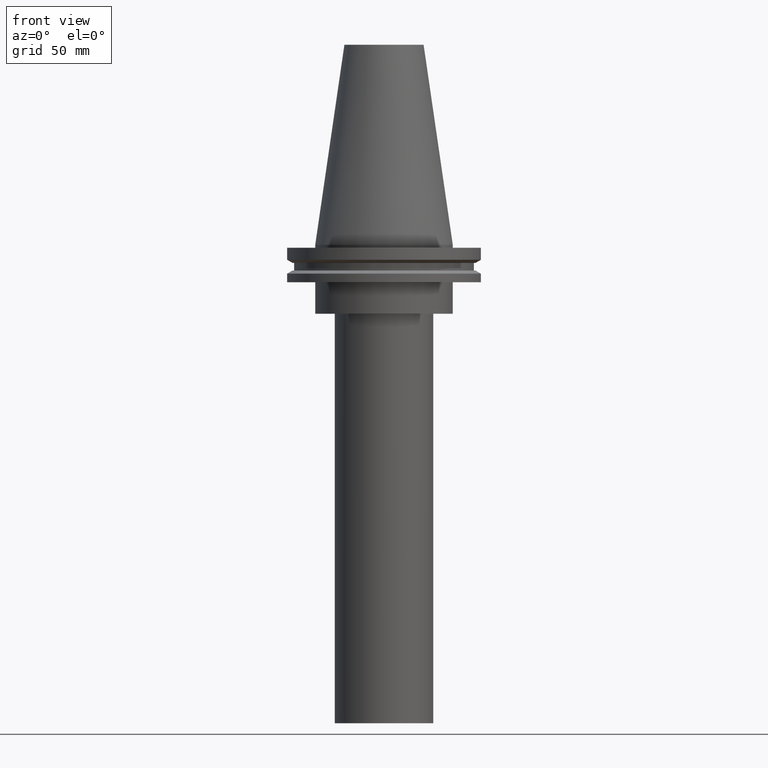
[diagram: clean part render]
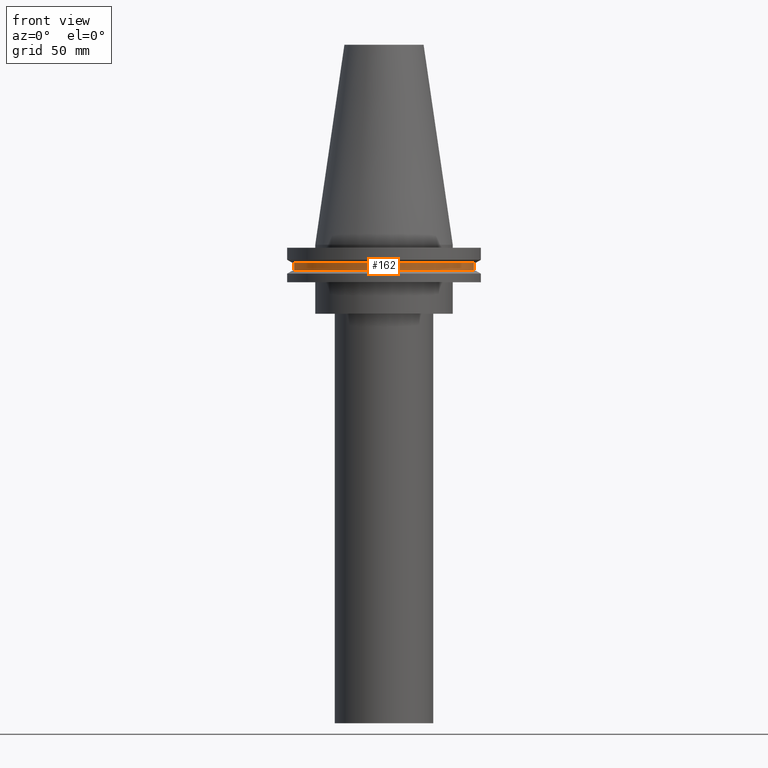
[diagram: same view with one face highlighted and labeled with its STEP entity id]
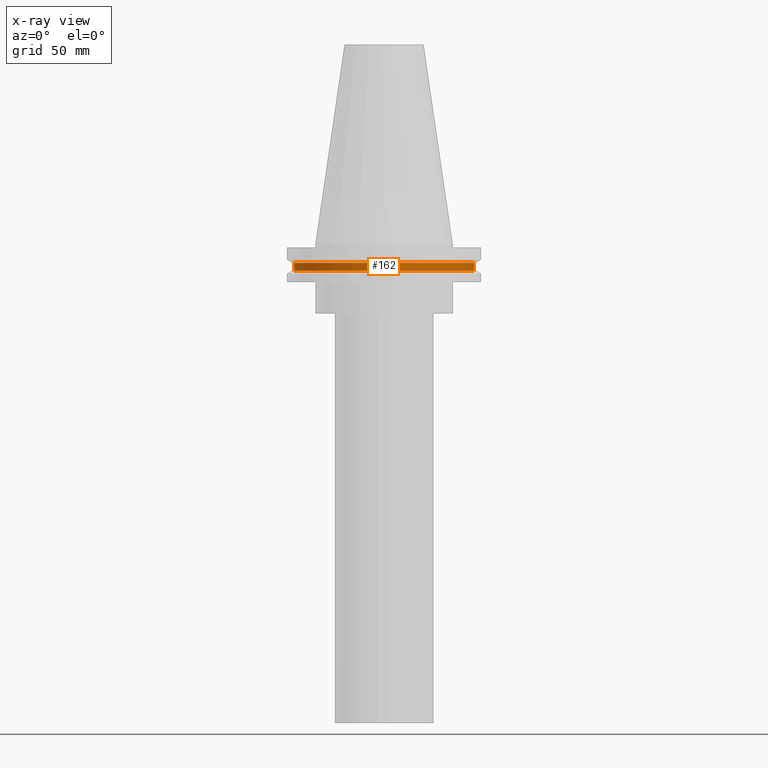
[diagram: x-ray of the same camera — body ghosted, the highlighted face saturated]
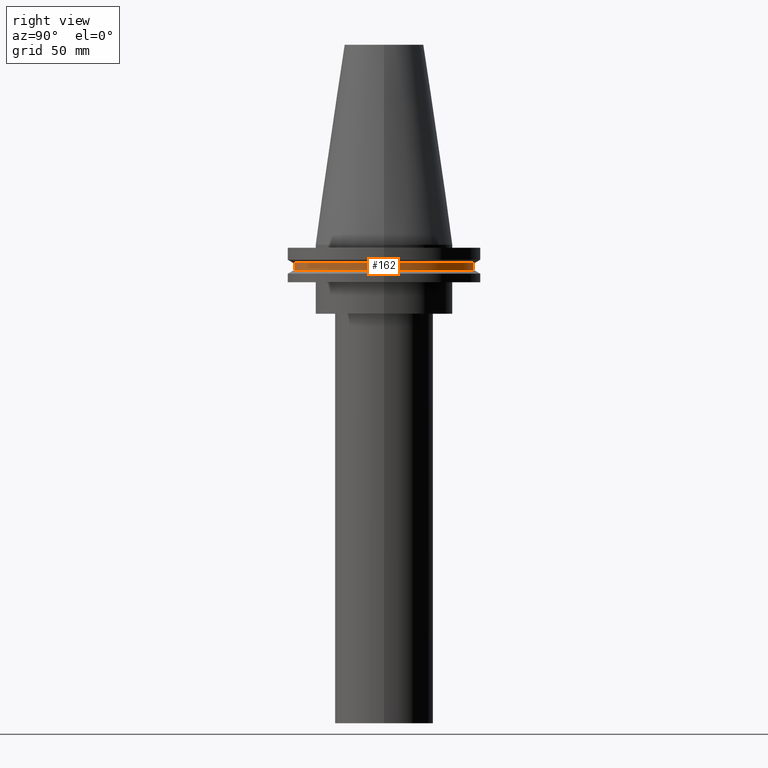
[diagram: same view with one face highlighted and labeled with its STEP entity id]
A machine part, front view. The second image highlights one B-rep face of the part: STEP entity #162.
The next image is the same camera in x-ray: the body ghosted, the highlighted face saturated — about 0% of this face is hidden behind the body in this view.
A second angle (right view) of the same face is appended — the face is thin or edge-on in the first view.
In plain terms, the highlighted cylindrical surface (bore or boss wall) has radius 45.645 mm, axis along (-0, -0, 1).
Its self-contained STEP definition (entity closure, byte-faithful):
#5 = CARTESIAN_POINT ( 'NONE',  ( 0.000000000000000000, 0.000000000000000000, -9.204999999999991189 ) ) ;
#11 = DIRECTION ( 'NONE',  ( 1.000000000000000000, 0.000000000000000000, 0.000000000000000000 ) ) ;
#24 = CARTESIAN_POINT ( 'NONE',  ( 45.64500000000000313, 0.000000000000000000, -9.204999999999991189 ) ) ;
#37 = DIRECTION ( 'NONE',  ( -0.000000000000000000, -0.000000000000000000, 1.000000000000000000 ) ) ;
#40 = CARTESIAN_POINT ( 'NONE',  ( 0.000000000000000000, 0.000000000000000000, -13.05499999999999794 ) ) ;
#103 = DIRECTION ( 'NONE',  ( -0.000000000000000000, -0.000000000000000000, 1.000000000000000000 ) ) ;
#117 = CYLINDRICAL_SURFACE ( 'NONE', #329, 45.64500000000000313 ) ;
#122 = FACE_OUTER_BOUND ( 'NONE', #199, .T. ) ;
#156 = DIRECTION ( 'NONE',  ( -0.000000000000000000, -0.000000000000000000, 1.000000000000000000 ) ) ;
#162 = ADVANCED_FACE ( 'NONE', ( #122, #367 ), #117, .T. ) ;
#178 = DIRECTION ( 'NONE',  ( 1.000000000000000000, 0.000000000000000000, 0.000000000000000000 ) ) ;
#180 = VERTEX_POINT ( 'NONE', #369 ) ;
#199 = EDGE_LOOP ( 'NONE', ( #349 ) ) ;
#217 = CARTESIAN_POINT ( 'NONE',  ( 0.000000000000000000, 0.000000000000000000, 101.5999999999999943 ) ) ;
#235 = EDGE_CURVE ( 'NONE', #296, #296, #357, .T. ) ;
#241 = AXIS2_PLACEMENT_3D ( 'NONE', #40, #103, #355 ) ;
#296 = VERTEX_POINT ( 'NONE', #24 ) ;
#302 = ORIENTED_EDGE ( 'NONE', *, *, #337, .T. ) ;
#329 = AXIS2_PLACEMENT_3D ( 'NONE', #217, #156, #178 ) ;
#337 = EDGE_CURVE ( 'NONE', #180, #180, #370, .T. ) ;
#349 = ORIENTED_EDGE ( 'NONE', *, *, #235, .F. ) ;
#355 = DIRECTION ( 'NONE',  ( 1.000000000000000000, 0.000000000000000000, 0.000000000000000000 ) ) ;
#357 = CIRCLE ( 'NONE', #383, 45.64500000000000313 ) ;
#367 = FACE_OUTER_BOUND ( 'NONE', #389, .T. ) ;
#369 = CARTESIAN_POINT ( 'NONE',  ( 45.64500000000000313, 0.000000000000000000, -13.05499999999999794 ) ) ;
#370 = CIRCLE ( 'NONE', #241, 45.64500000000000313 ) ;
#383 = AXIS2_PLACEMENT_3D ( 'NONE', #5, #37, #11 ) ;
#389 = EDGE_LOOP ( 'NONE', ( #302 ) ) ;